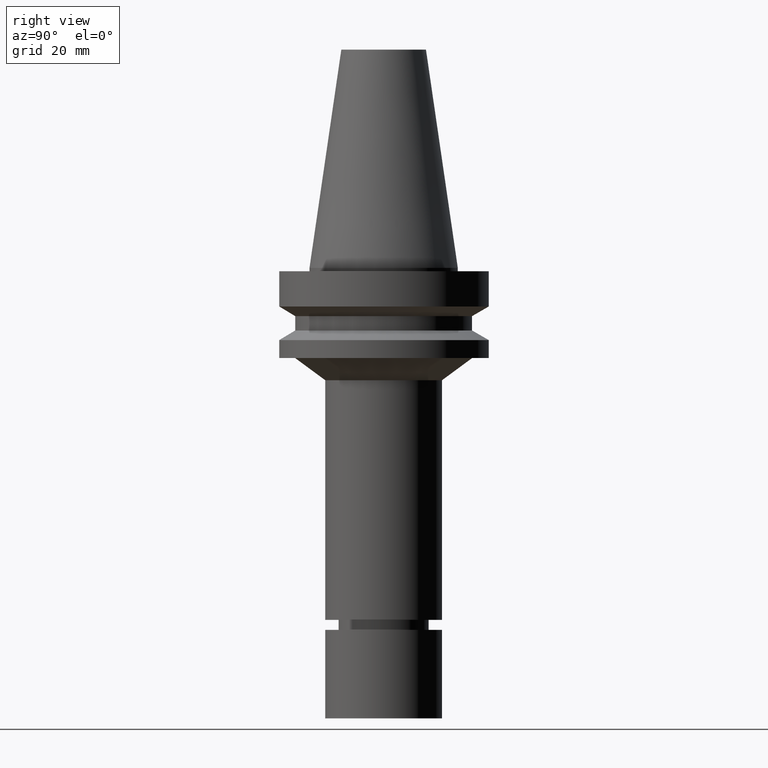
[diagram: clean part render]
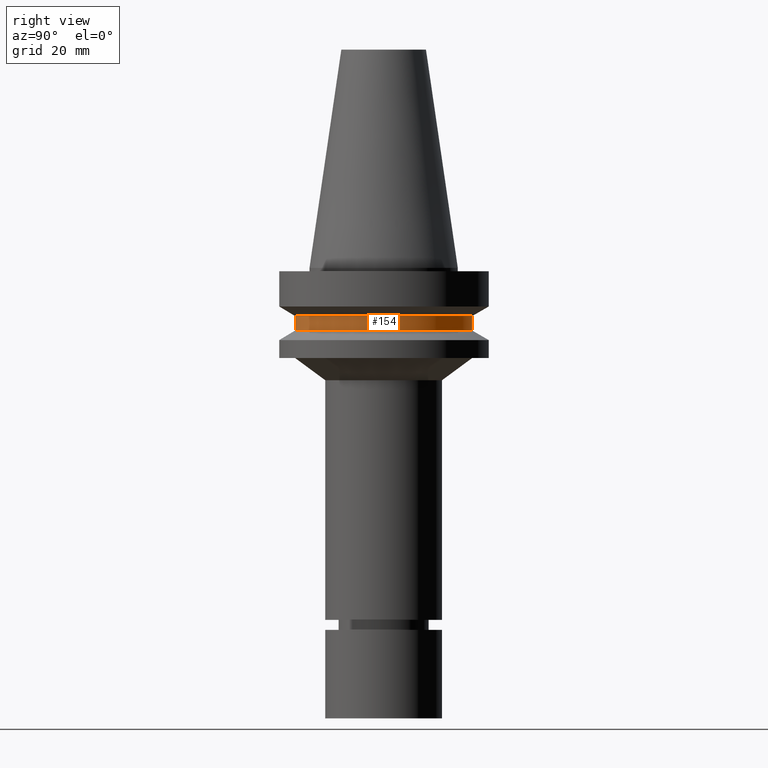
[diagram: same view with one face highlighted and labeled with its STEP entity id]
A machine part, right view. The second image highlights one B-rep face of the part: STEP entity #154.
In plain terms, the highlighted cylindrical surface (bore or boss wall) has radius 26.5 mm, axis along (0, -0, -1).
Its self-contained STEP definition (entity closure, byte-faithful):
#137=EDGE_CURVE('Unnamed[1]',#299,#299,#300,.T.);
#154=ADVANCED_FACE('Unnamed[1]',(#324,#325),#326,.T.);
#177=EDGE_CURVE('Unnamed[1]',#357,#357,#358,.T.);
#299=VERTEX_POINT('',#499);
#300=CIRCLE('',#500,26.4999999999994);
#324=FACE_BOUND('',#531,.T.);
#325=FACE_BOUND('',#532,.T.);
#326=CYLINDRICAL_SURFACE('',#533,26.4999999999997);
#357=VERTEX_POINT('',#571);
#358=CIRCLE('',#572,26.5);
#499=CARTESIAN_POINT('',(8.8494551369045E-016,26.4999999999995,-14.4522569986152));
#500=AXIS2_PLACEMENT_3D('',#692,#693,#694);
#531=EDGE_LOOP('',(#719));
#532=EDGE_LOOP('',(#720));
#533=AXIS2_PLACEMENT_3D('',#721,#722,#723);
#571=CARTESIAN_POINT('',(1.1479681728942E-015,26.5,-18.7477430013855));
#572=AXIS2_PLACEMENT_3D('',#752,#753,#754);
#692=CARTESIAN_POINT('',(8.8494551369045E-016,6.95840743917707E-014,-14.4522569986152));
#693=DIRECTION('',(6.12323399573677E-017,-9.38040710727945E-017,-1.0));
#694=DIRECTION('',(9.16690038548378E-034,1.0,-9.38040710727945E-017));
#719=ORIENTED_EDGE('',*,*,#177,.F.);
#720=ORIENTED_EDGE('',*,*,#137,.T.);
#721=CARTESIAN_POINT('',(1.01645684329232E-015,6.93826073546228E-014,-16.6000000000004));
#722=DIRECTION('',(6.12323399573677E-017,-9.38040710727935E-017,-1.0));
#723=DIRECTION('',(9.16690038548368E-034,1.0,-9.38040710727935E-017));
#752=CARTESIAN_POINT('',(1.1479681728942E-015,6.91811403174748E-014,-18.7477430013855));
#753=DIRECTION('',(6.12323399573677E-017,-9.38040710727925E-017,-1.0));
#754=DIRECTION('',(9.16690038548358E-034,1.0,-9.38040710727925E-017));